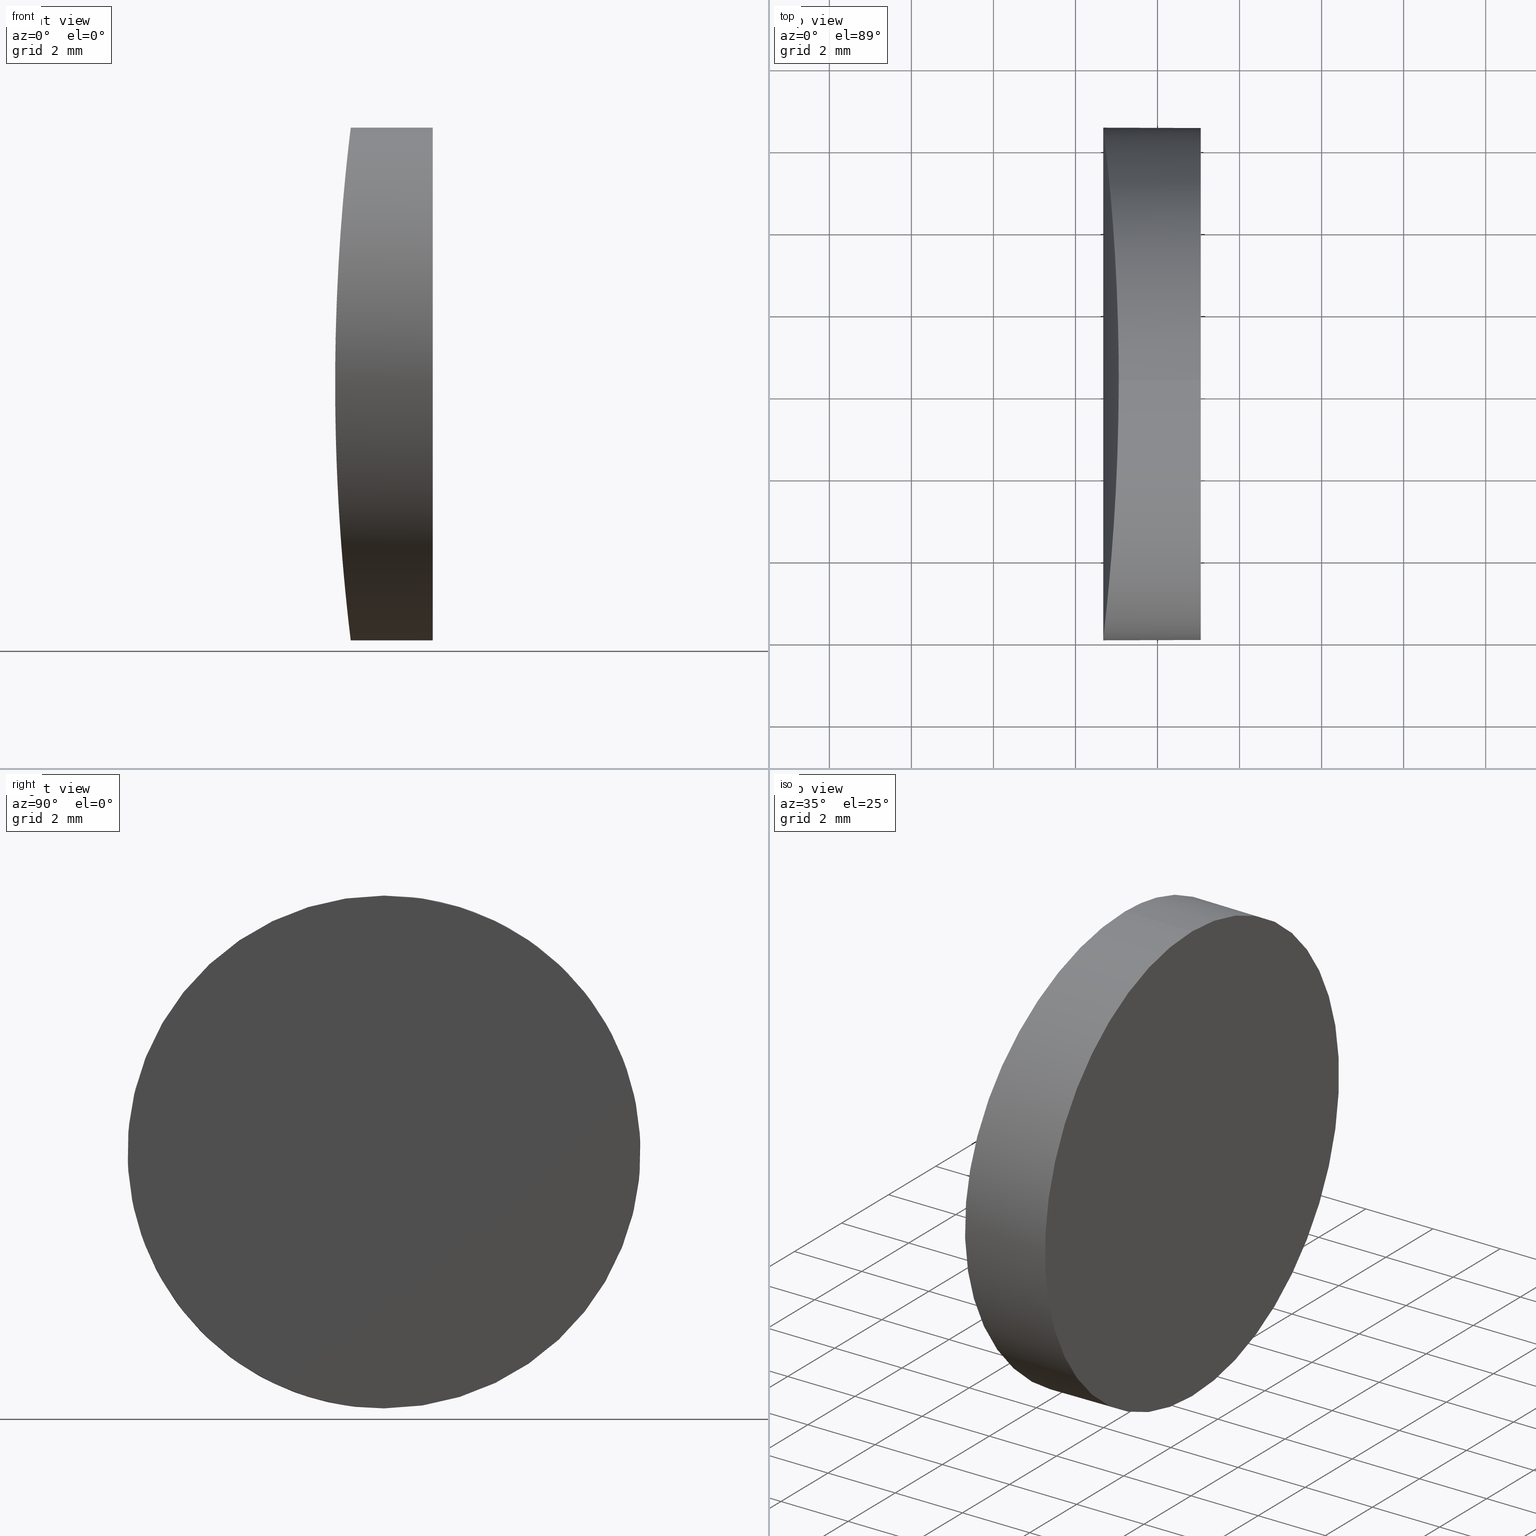
[diagram: canonical four-view strip — front | top / right | iso, engineering-drawing reading convention]
A machine part, canonical four-view strip (front | top / right | iso — engineering-drawing reading convention). The complete STEP part file that produces these views, byte-faithful:
ISO-10303-21;
HEADER;
FILE_DESCRIPTION (( 'STEP AP214' ),
    '1' );
FILE_NAME ('155021.STEP',
    '2019-06-17T05:19:27',
    ( 'user' ),
    ( '΢���й�' ),
    'SwSTEP 2.0',
    'SolidWorks 2016',
    '' );
FILE_SCHEMA (( 'AUTOMOTIVE_DESIGN' ));
ENDSEC;

DATA;
#1 = CARTESIAN_POINT ( 'NONE',  ( -47.25082710498030300, 11.85640467852138800, -2.769921208453577600 ) ) ;
#2 = CARTESIAN_POINT ( 'NONE',  ( -47.23104516057564700, 11.67512932549080600, 3.130014726720448300 ) ) ;
#3 = CARTESIAN_POINT ( 'NONE',  ( -46.94547694717461900, 6.250000000000000900, 6.250000000000021300 ) ) ;
#4 = VERTEX_POINT ( 'NONE', #211 ) ;
#5 =( NAMED_UNIT ( * ) PLANE_ANGLE_UNIT ( ) SI_UNIT ( $, .RADIAN. ) );
#6 = ORIENTED_EDGE ( 'NONE', *, *, #158, .F. ) ;
#7 = STYLED_ITEM ( 'NONE', ( #56 ), #23 ) ;
#8 = ORIENTED_EDGE ( 'NONE', *, *, #175, .T. ) ;
#9 = CARTESIAN_POINT ( 'NONE',  ( -47.16005796381824700, 1.544190017903018100, 4.133225496013304600 ) ) ;
#10 = PRESENTATION_LAYER_ASSIGNMENT (  '', '', ( #7 ) ) ;
#11 = FILL_AREA_STYLE_COLOUR ( '', #93 ) ;
#12 = CARTESIAN_POINT ( 'NONE',  ( -46.94547694717461200, 6.663078867264774300, -6.249999999999979600 ) ) ;
#13 = AXIS2_PLACEMENT_3D ( 'NONE', #142, #101, #59 ) ;
#14 = CARTESIAN_POINT ( 'NONE',  ( -47.05169682610842600, 2.942651485579422100, -5.307174332251346300 ) ) ;
#15 = CYLINDRICAL_SURFACE ( 'NONE', #13, 6.250000000000000000 ) ;
#16 = CARTESIAN_POINT ( 'NONE',  ( -46.97055918847154700, 7.866351444950760600, -6.040859725563231900 ) ) ;
#17 = CARTESIAN_POINT ( 'NONE',  ( -47.28657415169744400, 12.17768417554527000, -2.022501655112131800 ) ) ;
#18 = CARTESIAN_POINT ( 'NONE',  ( -47.16031550920236300, 10.95861680581986700, 4.130028125157290100 ) ) ;
#19 = PLANE ( 'NONE',  #66 ) ;
#20 =( NAMED_UNIT ( * ) PLANE_ANGLE_UNIT ( ) SI_UNIT ( $, .RADIAN. ) );
#21 = ORIENTED_EDGE ( 'NONE', *, *, #37, .F. ) ;
#22 = APPLICATION_CONTEXT ( 'automotive_design' ) ;
#23 = MANIFOLD_SOLID_BREP ( '�г�-����8', #45 ) ;
#24 = CIRCLE ( 'NONE', #72, 6.250000000000000000 ) ;
#25 = CARTESIAN_POINT ( 'NONE',  ( -47.21913725060653600, 0.9428604123132635600, 3.307403980761042500 ) ) ;
#26 = CARTESIAN_POINT ( 'NONE',  ( -44.94479566514873900, 6.250000000000000000, 1.974520306433012400E-014 ) ) ;
#27 = FACE_OUTER_BOUND ( 'NONE', #193, .T. ) ;
#28 = CARTESIAN_POINT ( 'NONE',  ( -47.26039377999457300, 0.5564876552685500400, 2.586073974211565900 ) ) ;
#29 = CARTESIAN_POINT ( 'NONE',  ( -47.01989043724216100, 3.480019109339528500, -5.606375209224117000 ) ) ;
#30 = B_SPLINE_CURVE_WITH_KNOTS ( 'NONE', 3,
 ( #131, #12, #216, #118, #16, #134, #32, #149, #49, #169, #67, #185, #86, #198, #103, #1, #119, #17, #136, #33, #151, #50, #170, #88, #68, #186, #199, #104, #2, #120, #18, #137, #34, #152, #51, #171, #70, #89, #201, #187, #105, #3 ),
 .UNSPECIFIED., .F., .F.,
 ( 4, 2, 2, 2, 2, 2, 2, 2, 2, 2, 2, 2, 2, 2, 2, 2, 2, 2, 2, 2, 4 ),
 ( -0.009772329198426268200, -0.008550781752019219800, -0.007940008028815696500, -0.007329234305612171400, -0.006107686859205123900, -0.004886139412798075500, -0.003664591966391027100, -0.003053818243187503800, -0.002443044519983979600, -0.001221497073576931200, 5.037283011717630400E-008, 0.001221597819237163800, 0.001832371542440690600, 0.002443145265644214000, 0.003664692712051260600, 0.004886240158458309000, 0.006107787604865359100, 0.006718561328068879000, 0.007329335051272402300, 0.008550882497679449000, 0.009772429944086488700 ),
 .UNSPECIFIED. ) ;
#31 =( GEOMETRIC_REPRESENTATION_CONTEXT ( 3 ) GLOBAL_UNCERTAINTY_ASSIGNED_CONTEXT ( ( #207 ) ) GLOBAL_UNIT_ASSIGNED_CONTEXT ( ( #121, #20, #138 ) ) REPRESENTATION_CONTEXT ( 'NONE', 'WORKASPACE' ) );
#32 = CARTESIAN_POINT ( 'NONE',  ( -46.99245370681453000, 8.454033477193329200, -5.852062368239519900 ) ) ;
#33 = CARTESIAN_POINT ( 'NONE',  ( -47.31984558969237000, 12.45945346077270900, -0.8214641195671256200 ) ) ;
#34 = CARTESIAN_POINT ( 'NONE',  ( -47.08630751415479700, 10.06904539216940500, 4.964473808074572500 ) ) ;
#35 = CARTESIAN_POINT ( 'NONE',  ( 0.0000000000000000000, 0.0000000000000000000, 0.0000000000000000000 ) ) ;
#36 = ORIENTED_EDGE ( 'NONE', *, *, #94, .F. ) ;
#37 = EDGE_CURVE ( 'NONE', #4, #200, #153, .T. ) ;
#38 = CYLINDRICAL_SURFACE ( 'NONE', #206, 6.250000000000000000 ) ;
#39 = ORIENTED_EDGE ( 'NONE', *, *, #158, .T. ) ;
#40 = CARTESIAN_POINT ( 'NONE',  ( -46.95046287457074600, 5.430834541005293800, 6.209452990338519400 ) ) ;
#41 = EDGE_CURVE ( 'NONE', #177, #200, #127, .T. ) ;
#42 = DIRECTION ( 'NONE',  ( 1.000000000000000000, -4.930380657631323800E-032, -4.995092817331919300E-016 ) ) ;
#43 = DIRECTION ( 'NONE',  ( 1.000000000000000000, -0.0000000000000000000, -2.775557561562888400E-016 ) ) ;
#44 = CARTESIAN_POINT ( 'NONE',  ( -47.29989041088435200, 0.2091056329243635400, -1.616222330641536900 ) ) ;
#45 = CLOSED_SHELL ( 'NONE', ( #140, #75, #209, #57 ) ) ;
#46 = CARTESIAN_POINT ( 'NONE',  ( -46.98396082849980400, 4.227436085865318400, -5.927662961359732000 ) ) ;
#47 = PRODUCT ( '155021', '155021', '', ( #139 ) ) ;
#48 = SHAPE_DEFINITION_REPRESENTATION ( #95, #97 ) ;
#49 = CARTESIAN_POINT ( 'NONE',  ( -47.03975668844116600, 9.379984578098227400, -5.425146848812586200 ) ) ;
#50 = CARTESIAN_POINT ( 'NONE',  ( -47.32479525667250900, 12.49999662239184100, 0.4131246869317417000 ) ) ;
#51 = CARTESIAN_POINT ( 'NONE',  ( -47.04056695211293300, 9.380133610205430000, 5.413547716130509900 ) ) ;
#52 = DIRECTION ( 'NONE',  ( 1.000000000000000000, -4.930380657631323800E-032, -4.995092817331919300E-016 ) ) ;
#53 = ORIENTED_EDGE ( 'NONE', *, *, #54, .F. ) ;
#54 = EDGE_CURVE ( 'NONE', #55, #4, #87, .T. ) ;
#55 = VERTEX_POINT ( 'NONE', #163 ) ;
#56 = PRESENTATION_STYLE_ASSIGNMENT (( #61 ) ) ;
#57 = ADVANCED_FACE ( 'NONE', ( #27 ), #15, .T. ) ;
#58 = CARTESIAN_POINT ( 'NONE',  ( -46.97055816146232800, 4.633681638650292800, 6.040868426487421900 ) ) ;
#59 = DIRECTION ( 'NONE',  ( 0.0000000000000000000, 0.0000000000000000000, -1.000000000000000000 ) ) ;
#60 = CYLINDRICAL_SURFACE ( 'NONE', #172, 51.68000000000001400 ) ;
#61 = SURFACE_STYLE_USAGE ( .BOTH. , #129 ) ;
#62 = CARTESIAN_POINT ( 'NONE',  ( -47.23022438101842400, 0.8365215726780513800, 3.130253451428529800 ) ) ;
#63 = CARTESIAN_POINT ( 'NONE',  ( -47.27812772664542300, 0.3978939391200661500, -2.203917899549941800 ) ) ;
#64 = CARTESIAN_POINT ( 'NONE',  ( -46.95046586364109900, 5.428476942065763000, -6.209445915562389100 ) ) ;
#65 = DIRECTION ( 'NONE',  ( 0.0000000000000000000, 0.0000000000000000000, -1.000000000000000000 ) ) ;
#66 = AXIS2_PLACEMENT_3D ( 'NONE', #188, #90, #203 ) ;
#67 = CARTESIAN_POINT ( 'NONE',  ( -47.11065373369466900, 10.38000547287573400, -4.708636960117370800 ) ) ;
#68 = CARTESIAN_POINT ( 'NONE',  ( -47.29988522015150900, 12.29085002246438300, 1.616387609017777300 ) ) ;
#69 = FACE_OUTER_BOUND ( 'NONE', #130, .T. ) ;
#70 = CARTESIAN_POINT ( 'NONE',  ( -47.01026882829728500, 8.835948244664615800, 5.693569459430642100 ) ) ;
#71 = FILL_AREA_STYLE_COLOUR ( '', #159 ) ;
#72 = AXIS2_PLACEMENT_3D ( 'NONE', #154, #52, #173 ) ;
#73 = LINE ( 'NONE', #184, #74 ) ;
#74 = VECTOR ( 'NONE', #84, 1000.000000000000000 ) ;
#75 = ADVANCED_FACE ( 'NONE', ( #113 ), #60, .T. ) ;
#76 = CARTESIAN_POINT ( 'NONE',  ( -46.99245181448946300, 4.046010876531409100, 5.852078929731992400 ) ) ;
#77 =( NAMED_UNIT ( * ) SI_UNIT ( $, .STERADIAN. ) SOLID_ANGLE_UNIT ( ) );
#78 = FILL_AREA_STYLE ('',( #11 ) ) ;
#79 = CARTESIAN_POINT ( 'NONE',  ( -47.31984253551102900, 0.04057182528522977600, 0.8216514157001686400 ) ) ;
#80 = CARTESIAN_POINT ( 'NONE',  ( -47.23105237718866100, 0.8248021626190909000, -3.129896998411503300 ) ) ;
#81 = EDGE_LOOP ( 'NONE', ( #8, #168 ) ) ;
#82 = PRODUCT_RELATED_PRODUCT_CATEGORY ( 'part', '', ( #47 ) ) ;
#83 = CARTESIAN_POINT ( 'NONE',  ( -46.94547694717462600, 6.250000000000000000, -6.249999999999979600 ) ) ;
#84 = DIRECTION ( 'NONE',  ( 1.000000000000000000, -0.0000000000000000000, -2.775557561562888400E-016 ) ) ;
#85 = UNCERTAINTY_MEASURE_WITH_UNIT (LENGTH_MEASURE( 1.000000000000000100E-005 ), #107, 'distance_accuracy_value', 'NONE');
#86 = CARTESIAN_POINT ( 'NONE',  ( -47.18462604509891600, 11.21446345395959900, -3.819059760508515000 ) ) ;
#87 = B_SPLINE_CURVE_WITH_KNOTS ( 'NONE', 3,
 ( #194, #114, #40, #141, #58, #160, #76, #178, #96, #191, #112, #9, #128, #25, #62, #145, #28, #143, #162, #79, #195, #99, #212, #115, #44, #165, #63, #181, #80, #196, #100, #214, #116, #14, #132, #29, #147, #46, #167, #64, #182, #83 ),
 .UNSPECIFIED., .F., .F.,
 ( 4, 2, 2, 2, 2, 2, 2, 2, 2, 2, 2, 2, 2, 2, 2, 2, 2, 2, 2, 2, 4 ),
 ( 0.009772429944086488700, 0.01099397739062927200, 0.01160475111390066300, 0.01221552483717205600, 0.01343707228371484100, 0.01465861973025762600, 0.01588016717680041200, 0.01649094090007180400, 0.01710171462334319700, 0.01832326206988598200, 0.01954480951642876800, 0.02076635696297155300, 0.02137713068624294600, 0.02198790440951433500, 0.02320945185605712000, 0.02443099930259990200, 0.02565254674914268000, 0.02626332047241406900, 0.02687409419568546200, 0.02809564164222824000, 0.02931718908877101500 ),
 .UNSPECIFIED. ) ;
#88 = CARTESIAN_POINT ( 'NONE',  ( -47.30571481424215100, 12.34033836671297900, 1.418358005186792800 ) ) ;
#89 = CARTESIAN_POINT ( 'NONE',  ( -46.98395927728172000, 8.272523323269309600, 5.927676227714553800 ) ) ;
#90 = DIRECTION ( 'NONE',  ( 1.000000000000000000, 0.0000000000000000000, -5.551115123125786600E-016 ) ) ;
#91 = MECHANICAL_DESIGN_GEOMETRIC_PRESENTATION_REPRESENTATION (  '', ( #111 ), #126 ) ;
#92 = SURFACE_SIDE_STYLE ('',( #108 ) ) ;
#93 = COLOUR_RGB ( '',1.000000000000000000, 1.000000000000000000, 1.000000000000000000 ) ;
#94 = EDGE_CURVE ( 'NONE', #55, #177, #73, .T. ) ;
#95 = PRODUCT_DEFINITION_SHAPE ( 'NONE', 'NONE',  #202 ) ;
#96 = CARTESIAN_POINT ( 'NONE',  ( -47.03975310939628000, 3.120074691258519600, 5.425180369769990700 ) ) ;
#97 = ADVANCED_BREP_SHAPE_REPRESENTATION ( '155021', ( #23, #190 ), #31 ) ;
#98 = PRESENTATION_LAYER_ASSIGNMENT (  '', '', ( #111 ) ) ;
#99 = CARTESIAN_POINT ( 'NONE',  ( -47.32479691475688100, -1.033275973106930400E-005, -0.4129079678905596700 ) ) ;
#100 = CARTESIAN_POINT ( 'NONE',  ( -47.16032224934166100, 1.541309359868791700, -4.129944821256700000 ) ) ;
#101 = DIRECTION ( 'NONE',  ( 1.000000000000000000, -0.0000000000000000000, -2.775557561562888400E-016 ) ) ;
#102 = CARTESIAN_POINT ( 'NONE',  ( -44.94479566514873900, 6.250000000000000000, -6.249999999999980500 ) ) ;
#103 = CARTESIAN_POINT ( 'NONE',  ( -47.23023161077696800, 11.66354727983170700, -3.130134624806761400 ) ) ;
#104 = CARTESIAN_POINT ( 'NONE',  ( -47.25182460716867900, 11.86692088816954900, 2.771333540084396100 ) ) ;
#105 = CARTESIAN_POINT ( 'NONE',  ( -46.94547694717461900, 6.663070222345918800, 6.250000000000021300 ) ) ;
#106 = ORIENTED_EDGE ( 'NONE', *, *, #94, .T. ) ;
#107 =( LENGTH_UNIT ( ) NAMED_UNIT ( * ) SI_UNIT ( .MILLI., .METRE. ) );
#108 = SURFACE_STYLE_FILL_AREA ( #189 ) ;
#109 = EDGE_LOOP ( 'NONE', ( #6, #53 ) ) ;
#110 = DIRECTION ( 'NONE',  ( 0.0000000000000000000, 0.0000000000000000000, 1.000000000000000000 ) ) ;
#111 = STYLED_ITEM ( 'NONE', ( #210 ), #97 ) ;
#112 = CARTESIAN_POINT ( 'NONE',  ( -47.11064802182773500, 2.120065776992907200, 4.708698748288413500 ) ) ;
#113 = FACE_OUTER_BOUND ( 'NONE', #109, .T. ) ;
#114 = CARTESIAN_POINT ( 'NONE',  ( -46.94547694717461900, 5.836929777608181900, 6.250000000000022200 ) ) ;
#115 = CARTESIAN_POINT ( 'NONE',  ( -47.30571951166639600, 0.1596218194314312800, -1.418187626216029600 ) ) ;
#116 = CARTESIAN_POINT ( 'NONE',  ( -47.08631253580361400, 2.430886641310155700, -4.964422172666981000 ) ) ;
#117 = CARTESIAN_POINT ( 'NONE',  ( 4.355204334851265500, 12.50000000000000000, 4.286263797015675000E-017 ) ) ;
#118 = CARTESIAN_POINT ( 'NONE',  ( -46.96469113075984600, 7.668320582155438100, -6.090347124143050900 ) ) ;
#119 = CARTESIAN_POINT ( 'NONE',  ( -47.26040059697066900, 11.94357410470181000, -2.585938334870768100 ) ) ;
#120 = CARTESIAN_POINT ( 'NONE',  ( -47.18536916877100400, 11.22208289111889500, 3.808859686524297400 ) ) ;
#121 =( LENGTH_UNIT ( ) NAMED_UNIT ( * ) SI_UNIT ( .MILLI., .METRE. ) );
#122 =( NAMED_UNIT ( * ) SI_UNIT ( $, .STERADIAN. ) SOLID_ANGLE_UNIT ( ) );
#123 = ORIENTED_EDGE ( 'NONE', *, *, #37, .T. ) ;
#124 = APPLICATION_PROTOCOL_DEFINITION ( 'draft international standard', 'automotive_design', 1998, #22 ) ;
#125 = UNCERTAINTY_MEASURE_WITH_UNIT (LENGTH_MEASURE( 1.000000000000000100E-005 ), #192, 'distance_accuracy_value', 'NONE');
#126 =( GEOMETRIC_REPRESENTATION_CONTEXT ( 3 ) GLOBAL_UNCERTAINTY_ASSIGNED_CONTEXT ( ( #85 ) ) GLOBAL_UNIT_ASSIGNED_CONTEXT ( ( #107, #5, #122 ) ) REPRESENTATION_CONTEXT ( 'NONE', 'WORKASPACE' ) );
#127 = CIRCLE ( 'NONE', #156, 6.250000000000000000 ) ;
#128 = CARTESIAN_POINT ( 'NONE',  ( -47.18461897702682300, 1.285609852312186200, 3.819153995601948500 ) ) ;
#129 = SURFACE_SIDE_STYLE ('',( #213 ) ) ;
#130 = EDGE_LOOP ( 'NONE', ( #39, #106, #166, #21 ) ) ;
#131 = CARTESIAN_POINT ( 'NONE',  ( -46.94547694717462600, 6.250000000000000000, -6.249999999999979600 ) ) ;
#132 = CARTESIAN_POINT ( 'NONE',  ( -47.04057056529050100, 3.119806894281727000, -5.413513484063814800 ) ) ;
#133 = DIRECTION ( 'NONE',  ( -0.0000000000000000000, -1.000000000000000000, -0.0000000000000000000 ) ) ;
#134 = CARTESIAN_POINT ( 'NONE',  ( -46.98442363126918800, 8.258977461595726800, -5.921873671088116400 ) ) ;
#135 =( GEOMETRIC_REPRESENTATION_CONTEXT ( 3 ) GLOBAL_UNCERTAINTY_ASSIGNED_CONTEXT ( ( #125 ) ) GLOBAL_UNIT_ASSIGNED_CONTEXT ( ( #192, #179, #77 ) ) REPRESENTATION_CONTEXT ( 'NONE', 'WORKASPACE' ) );
#136 = CARTESIAN_POINT ( 'NONE',  ( -47.30068981686758900, 12.29796893105527300, -1.629167698620521700 ) ) ;
#137 = CARTESIAN_POINT ( 'NONE',  ( -47.11090522386229700, 10.38312479009189600, 4.705898852309448300 ) ) ;
#138 =( NAMED_UNIT ( * ) SI_UNIT ( $, .STERADIAN. ) SOLID_ANGLE_UNIT ( ) );
#139 = PRODUCT_CONTEXT ( 'NONE', #174, 'mechanical' ) ;
#140 = ADVANCED_FACE ( 'NONE', ( #69 ), #38, .T. ) ;
#141 = CARTESIAN_POINT ( 'NONE',  ( -46.96469034179516200, 4.831708533694221200, 6.090353761376500000 ) ) ;
#142 = CARTESIAN_POINT ( 'NONE',  ( -57.64479566514874200, 6.250000000000000000, 2.327016116751499300E-014 ) ) ;
#143 = CARTESIAN_POINT ( 'NONE',  ( -47.28656806589717800, 0.3223686892624637000, 2.022654869912051500 ) ) ;
#144 = ORIENTED_EDGE ( 'NONE', *, *, #41, .F. ) ;
#145 = CARTESIAN_POINT ( 'NONE',  ( -47.25082011083448900, 0.6436596632277102900, 2.770051151430294100 ) ) ;
#146 = CARTESIAN_POINT ( 'NONE',  ( -44.94479566514873900, 6.250000000000000900, 6.250000000000020400 ) ) ;
#147 = CARTESIAN_POINT ( 'NONE',  ( -47.01027135644105200, 3.664001300856960100, -5.693546695214617000 ) ) ;
#148 = DIRECTION ( 'NONE',  ( 1.000000000000000000, -0.0000000000000000000, -2.775557561562888400E-016 ) ) ;
#149 = CARTESIAN_POINT ( 'NONE',  ( -47.01888744296966400, 9.021302007169406800, -5.616936469862888100 ) ) ;
#150 = PRODUCT_DEFINITION_CONTEXT ( 'detailed design', #22, 'design' ) ;
#151 = CARTESIAN_POINT ( 'NONE',  ( -47.32479607357444700, 12.50000337719034200, -0.4130224836146364500 ) ) ;
#152 = CARTESIAN_POINT ( 'NONE',  ( -47.05169281698395900, 9.557286104703568000, 5.307213072438501400 ) ) ;
#153 = LINE ( 'NONE', #164, #157 ) ;
#154 = CARTESIAN_POINT ( 'NONE',  ( -44.94479566514873900, 6.250000000000000000, 1.974520306433012400E-014 ) ) ;
#155 = APPLICATION_PROTOCOL_DEFINITION ( 'draft international standard', 'automotive_design', 1998, #174 ) ;
#156 = AXIS2_PLACEMENT_3D ( 'NONE', #26, #42, #161 ) ;
#157 = VECTOR ( 'NONE', #43, 1000.000000000000000 ) ;
#158 = EDGE_CURVE ( 'NONE', #4, #55, #30, .T. ) ;
#159 = COLOUR_RGB ( '',1.000000000000000000, 1.000000000000000000, 1.000000000000000000 ) ;
#160 = CARTESIAN_POINT ( 'NONE',  ( -46.98442204692059900, 4.241063406383741400, 5.921887381080321000 ) ) ;
#161 = DIRECTION ( 'NONE',  ( 0.0000000000000000000, 0.0000000000000000000, -1.000000000000000000 ) ) ;
#162 = CARTESIAN_POINT ( 'NONE',  ( -47.30068445176124900, 0.2020767582846309800, 1.629335376214114300 ) ) ;
#163 = CARTESIAN_POINT ( 'NONE',  ( -46.94547694717461900, 6.250000000000000900, 6.250000000000021300 ) ) ;
#164 = CARTESIAN_POINT ( 'NONE',  ( -57.64479566514874200, 6.250000000000000000, -6.249999999999976900 ) ) ;
#165 = CARTESIAN_POINT ( 'NONE',  ( -47.28611133785538100, 0.3280851094110788200, -2.008856242953113800 ) ) ;
#166 = ORIENTED_EDGE ( 'NONE', *, *, #175, .F. ) ;
#167 = CARTESIAN_POINT ( 'NONE',  ( -46.96975346155691300, 4.620767536129148900, -6.047951743498072300 ) ) ;
#168 = ORIENTED_EDGE ( 'NONE', *, *, #41, .T. ) ;
#169 = CARTESIAN_POINT ( 'NONE',  ( -47.08556196603377200, 10.05883479500689700, -4.972102100184457600 ) ) ;
#170 = CARTESIAN_POINT ( 'NONE',  ( -47.31984669072505100, 12.45944561643557900, 0.8192243552674232100 ) ) ;
#171 = CARTESIAN_POINT ( 'NONE',  ( -47.01988755852359200, 9.019927307442641200, 5.606401520052153300 ) ) ;
#172 = AXIS2_PLACEMENT_3D ( 'NONE', #117, #133, #215 ) ;
#173 = DIRECTION ( 'NONE',  ( 0.0000000000000000000, 0.0000000000000000000, -1.000000000000000000 ) ) ;
#174 = APPLICATION_CONTEXT ( 'automotive_design' ) ;
#175 = EDGE_CURVE ( 'NONE', #200, #177, #24, .T. ) ;
#176 = FACE_OUTER_BOUND ( 'NONE', #81, .T. ) ;
#177 = VERTEX_POINT ( 'NONE', #146 ) ;
#178 = CARTESIAN_POINT ( 'NONE',  ( -47.01888458924021600, 3.478751746555828200, 5.616962394613819000 ) ) ;
#179 =( NAMED_UNIT ( * ) PLANE_ANGLE_UNIT ( ) SI_UNIT ( $, .RADIAN. ) );
#180 = ORIENTED_EDGE ( 'NONE', *, *, #54, .T. ) ;
#181 = CARTESIAN_POINT ( 'NONE',  ( -47.25183166108174500, 0.6330144574200534700, -2.771203932846734800 ) ) ;
#182 = CARTESIAN_POINT ( 'NONE',  ( -46.94547694717461900, 5.836921132689324700, -6.249999999999979600 ) ) ;
#183 = MECHANICAL_DESIGN_GEOMETRIC_PRESENTATION_REPRESENTATION (  '', ( #7 ), #135 ) ;
#184 = CARTESIAN_POINT ( 'NONE',  ( -57.64479566514874200, 6.250000000000000900, 6.250000000000024000 ) ) ;
#185 = CARTESIAN_POINT ( 'NONE',  ( -47.16006466076033400, 10.95588335644748300, -4.133142758685878900 ) ) ;
#186 = CARTESIAN_POINT ( 'NONE',  ( -47.28610528168284300, 12.17186212008433800, 2.009011430331943100 ) ) ;
#187 = CARTESIAN_POINT ( 'NONE',  ( -46.95046565479610500, 7.071505960132876500, 6.209447596466779900 ) ) ;
#188 = CARTESIAN_POINT ( 'NONE',  ( -44.94479566514873900, 12.50000000000000000, -6.249999999999993800 ) ) ;
#189 = FILL_AREA_STYLE ('',( #71 ) ) ;
#190 = AXIS2_PLACEMENT_3D ( 'NONE', #35, #110, #205 ) ;
#191 = CARTESIAN_POINT ( 'NONE',  ( -47.08555691765261000, 2.441233798277277600, 4.972153909871733100 ) ) ;
#192 =( LENGTH_UNIT ( ) NAMED_UNIT ( * ) SI_UNIT ( .MILLI., .METRE. ) );
#193 = EDGE_LOOP ( 'NONE', ( #36, #180, #123, #144 ) ) ;
#194 = CARTESIAN_POINT ( 'NONE',  ( -46.94547694717461900, 6.250000000000000900, 6.250000000000021300 ) ) ;
#195 = CARTESIAN_POINT ( 'NONE',  ( -47.32479441506746600, 1.033667211663447600E-005, 0.4132207132339336100 ) ) ;
#196 = CARTESIAN_POINT ( 'NONE',  ( -47.18537629101349000, 1.277843398936024100, -3.808764304847930900 ) ) ;
#197 = CARTESIAN_POINT ( 'NONE',  ( -57.64479566514874200, 6.250000000000000000, 2.327016116751499300E-014 ) ) ;
#198 = CARTESIAN_POINT ( 'NONE',  ( -47.21914455264492000, 11.55721053069249700, -3.307290445805393600 ) ) ;
#199 = CARTESIAN_POINT ( 'NONE',  ( -47.27812134748057800, 12.10204981422039900, 2.204066794693643400 ) ) ;
#200 = VERTEX_POINT ( 'NONE', #102 ) ;
#201 = CARTESIAN_POINT ( 'NONE',  ( -46.96975245945456800, 7.879198850138113400, 6.047960201796103200 ) ) ;
#202 = PRODUCT_DEFINITION ( 'δ֪', '', #208, #150 ) ;
#203 = DIRECTION ( 'NONE',  ( -5.551115123125786600E-016, 0.0000000000000000000, -1.000000000000000000 ) ) ;
#204 = SURFACE_STYLE_USAGE ( .BOTH. , #92 ) ;
#205 = DIRECTION ( 'NONE',  ( 1.000000000000000000, 0.0000000000000000000, 0.0000000000000000000 ) ) ;
#206 = AXIS2_PLACEMENT_3D ( 'NONE', #197, #148, #65 ) ;
#207 = UNCERTAINTY_MEASURE_WITH_UNIT (LENGTH_MEASURE( 1.000000000000000100E-005 ), #121, 'distance_accuracy_value', 'NONE');
#208 = PRODUCT_DEFINITION_FORMATION_WITH_SPECIFIED_SOURCE ( '�κ�', '', #47, .NOT_KNOWN. ) ;
#209 = ADVANCED_FACE ( 'NONE', ( #176 ), #19, .T. ) ;
#210 = PRESENTATION_STYLE_ASSIGNMENT (( #204 ) ) ;
#211 = CARTESIAN_POINT ( 'NONE',  ( -46.94547694717462600, 6.250000000000000000, -6.249999999999979600 ) ) ;
#212 = CARTESIAN_POINT ( 'NONE',  ( -47.31984971692451600, 0.04052932364217590900, -0.8190384737265694600 ) ) ;
#213 = SURFACE_STYLE_FILL_AREA ( #78 ) ;
#214 = CARTESIAN_POINT ( 'NONE',  ( -47.11091089276083500, 2.116804514710472200, -4.705837529225430400 ) ) ;
#215 = DIRECTION ( 'NONE',  ( 0.0000000000000000000, 0.0000000000000000000, -1.000000000000000000 ) ) ;
#216 = CARTESIAN_POINT ( 'NONE',  ( -46.95046308320256400, 7.069182459535897900, -6.209451309357578300 ) ) ;
ENDSEC;
END-ISO-10303-21;
